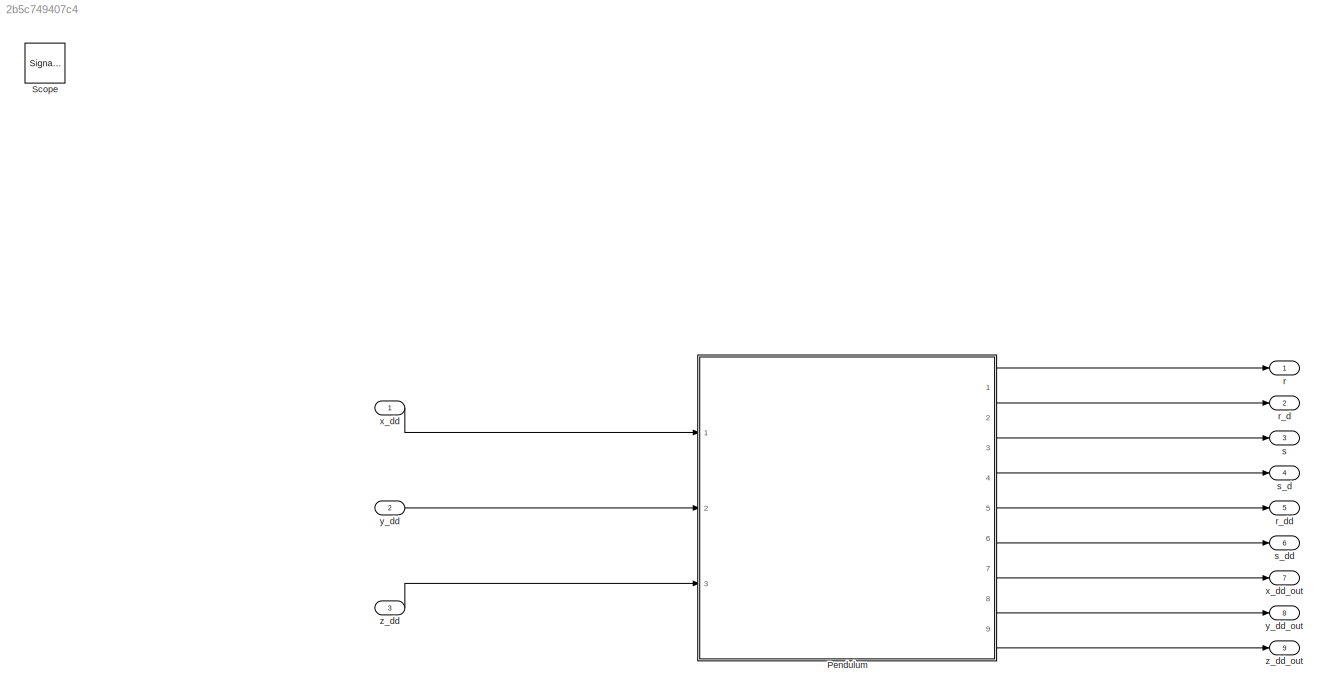
MODEL slx_2b5c749407c4
KIND model
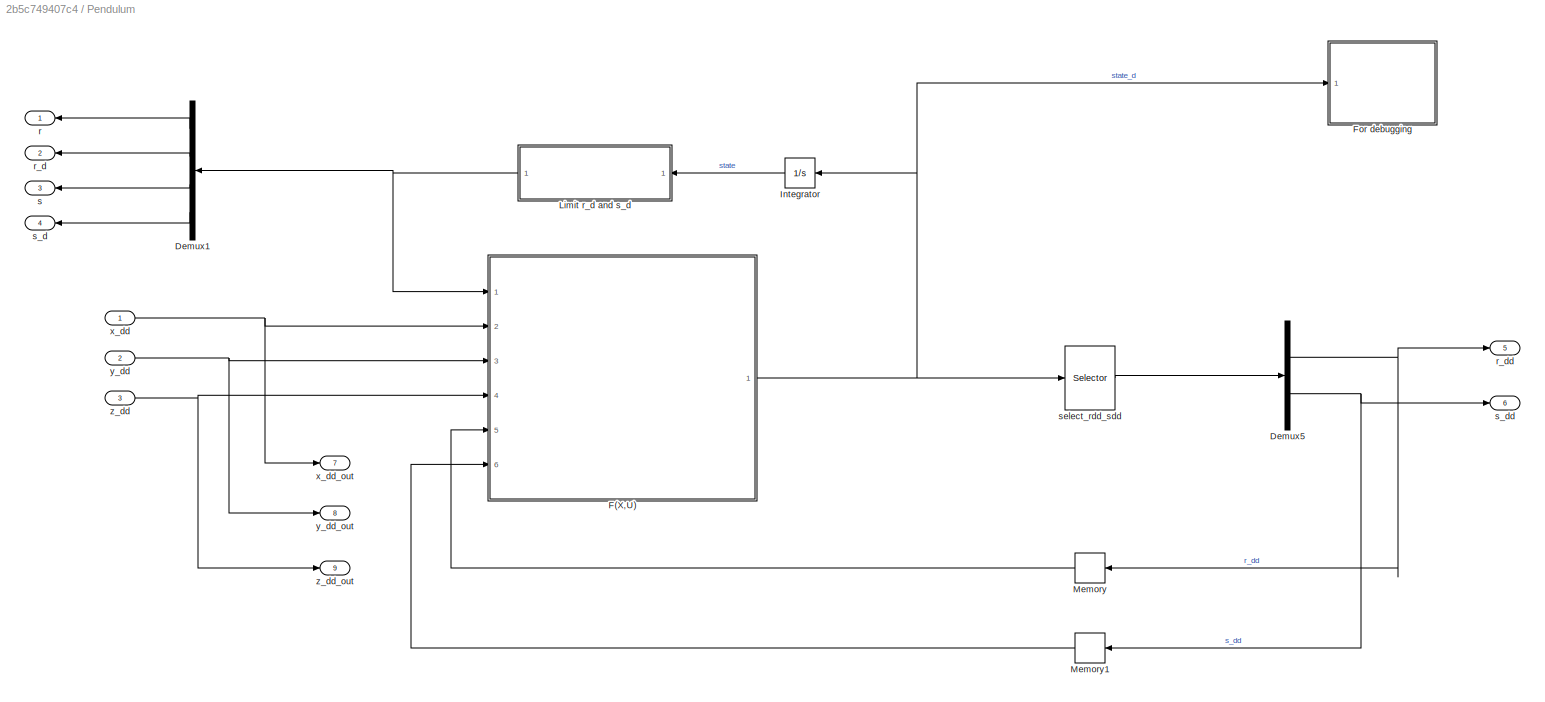
BLOCK [SubSystem] Pendulum
  Ports = [3, 9]
  RequestExecContextInheritance = off
BLOCK [Demux] Pendulum/Demux1
  DisplayOption = bar
  Outputs = [1 1 1 1]
  Ports = [1, 4]
BLOCK [Demux] Pendulum/Demux5
  DisplayOption = bar
  Outputs = [1 1]
  Ports = [1, 2]
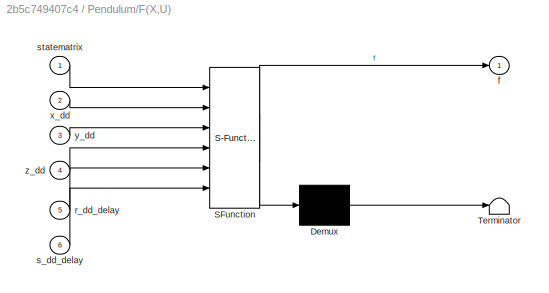
BLOCK [SubSystem] Pendulum/F(X,U)
  ErrorFcn = Stateflow.Translate.translate
  PermitHierarchicalResolution = ExplicitOnly
  Ports = [6, 1]
  RequestExecContextInheritance = off
  SFBlockType = MATLAB Function
  TreatAsAtomicUnit = on
BLOCK [Demux] Pendulum/F(X,U)/ Demux 
  Outputs = 1
  Ports = [1, 1]
BLOCK [S-Function] Pendulum/F(X,U)/ SFunction 
  EnableBusSupport = on
  FunctionName = sf_sfun
  PortCounts = [6 2]
  Ports = [6, 2]
  Tag = Stateflow S-Function pendulum1 2
BLOCK [Terminator] Pendulum/F(X,U)/ Terminator 
BLOCK [Outport] Pendulum/F(X,U)/f
  IconDisplay = Port number
BLOCK [Inport] Pendulum/F(X,U)/r_dd_delay
  IconDisplay = Port number
  Port = 5
BLOCK [Inport] Pendulum/F(X,U)/s_dd_delay
  IconDisplay = Port number
  Port = 6
BLOCK [Inport] Pendulum/F(X,U)/statematrix
  IconDisplay = Port number
BLOCK [Inport] Pendulum/F(X,U)/x_dd
  IconDisplay = Port number
  Port = 2
BLOCK [Inport] Pendulum/F(X,U)/y_dd
  IconDisplay = Port number
  Port = 3
BLOCK [Inport] Pendulum/F(X,U)/z_dd
  IconDisplay = Port number
  Port = 4
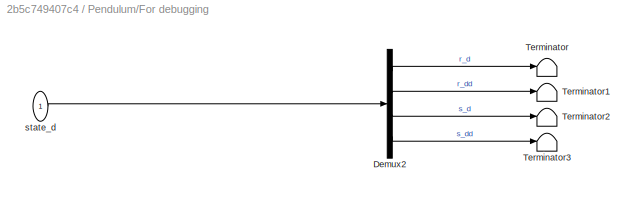
BLOCK [SubSystem] Pendulum/For debugging
  Ports = [1]
  RequestExecContextInheritance = off
BLOCK [Demux] Pendulum/For debugging/Demux2
  DisplayOption = bar
  Outputs = [1 1 1 1]
  Ports = [1, 4]
BLOCK [Terminator] Pendulum/For debugging/Terminator
BLOCK [Terminator] Pendulum/For debugging/Terminator1
BLOCK [Terminator] Pendulum/For debugging/Terminator2
BLOCK [Terminator] Pendulum/For debugging/Terminator3
BLOCK [Inport] Pendulum/For debugging/state_d
  IconDisplay = Port number
BLOCK [Integrator] Pendulum/Integrator
  Ports = [1, 1]
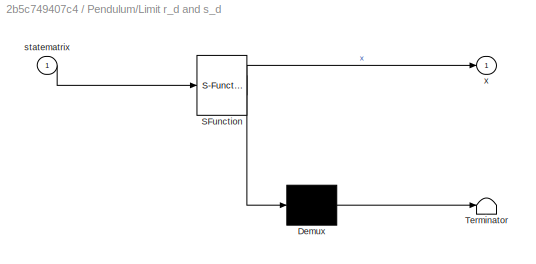
BLOCK [SubSystem] Pendulum/Limit r_d and s_d
  ErrorFcn = Stateflow.Translate.translate
  PermitHierarchicalResolution = ExplicitOnly
  Ports = [1, 1]
  RequestExecContextInheritance = off
  SFBlockType = MATLAB Function
  TreatAsAtomicUnit = on
BLOCK [Demux] Pendulum/Limit r_d and s_d/ Demux 
  Outputs = 1
  Ports = [1, 1]
BLOCK [S-Function] Pendulum/Limit r_d and s_d/ SFunction 
  EnableBusSupport = on
  FunctionName = sf_sfun
  PortCounts = [1 2]
  Ports = [1, 2]
  Tag = Stateflow S-Function pendulum1 1
BLOCK [Terminator] Pendulum/Limit r_d and s_d/ Terminator 
BLOCK [Inport] Pendulum/Limit r_d and s_d/statematrix
  IconDisplay = Port number
BLOCK [Outport] Pendulum/Limit r_d and s_d/x
  IconDisplay = Port number
BLOCK [Memory] Pendulum/Memory
BLOCK [Memory] Pendulum/Memory1
BLOCK [Outport] Pendulum/r
  IconDisplay = Port number
BLOCK [Outport] Pendulum/r_d
  IconDisplay = Port number
  Port = 2
BLOCK [Outport] Pendulum/r_dd
  IconDisplay = Port number
  Port = 5
BLOCK [Outport] Pendulum/s
  IconDisplay = Port number
  Port = 3
BLOCK [Outport] Pendulum/s_d
  IconDisplay = Port number
  Port = 4
BLOCK [Outport] Pendulum/s_dd
  IconDisplay = Port number
  Port = 6
BLOCK [Selector] Pendulum/select_rdd_sdd
  Indices = [2 4]
  InputPortWidth = 4
  Ports = [1, 1]
BLOCK [Inport] Pendulum/x_dd
  IconDisplay = Port number
BLOCK [Outport] Pendulum/x_dd_out
  IconDisplay = Port number
  Port = 7
BLOCK [Inport] Pendulum/y_dd
  IconDisplay = Port number
  Port = 2
BLOCK [Outport] Pendulum/y_dd_out
  IconDisplay = Port number
  Port = 8
BLOCK [Inport] Pendulum/z_dd
  IconDisplay = Port number
  Port = 3
BLOCK [Outport] Pendulum/z_dd_out
  IconDisplay = Port number
  Port = 9
BLOCK [SignalViewerScope] Scope
  IOType = viewer
  LegendLocations = 0.96635     0.93568    0.028125    0.041641
  MaxDataPoints = 7500
  NumInputPorts = 1
  Ports = []
  RefreshTime = 0.035000
  ShowDataMarkers = off
  ShowLegends = on
BLOCK [Outport] r
  IconDisplay = Port number
BLOCK [Outport] r_d
  IconDisplay = Port number
  Port = 2
BLOCK [Outport] r_dd
  IconDisplay = Port number
  Port = 5
BLOCK [Outport] s
  IconDisplay = Port number
  Port = 3
BLOCK [Outport] s_d
  IconDisplay = Port number
  Port = 4
BLOCK [Outport] s_dd
  IconDisplay = Port number
  Port = 6
BLOCK [Inport] x_dd
  IconDisplay = Port number
BLOCK [Outport] x_dd_out
  IconDisplay = Port number
  Port = 7
BLOCK [Inport] y_dd
  IconDisplay = Port number
  Port = 2
BLOCK [Outport] y_dd_out
  IconDisplay = Port number
  Port = 8
BLOCK [Inport] z_dd
  IconDisplay = Port number
  Port = 3
BLOCK [Outport] z_dd_out
  IconDisplay = Port number
  Port = 9
LINE Pendulum/Demux1:1 -> Pendulum/r:1
LINE Pendulum/Demux1:2 -> Pendulum/r_d:1
LINE Pendulum/Demux1:3 -> Pendulum/s:1
LINE Pendulum/Demux1:4 -> Pendulum/s_d:1
NET Pendulum/Demux5:1 -> Pendulum/Memory:1, Pendulum/r_dd:1
NET Pendulum/Demux5:2 -> Pendulum/Memory1:1, Pendulum/s_dd:1
NET Pendulum/F(X,U):1 -> Pendulum/For debugging:1, Pendulum/Integrator:1, Pendulum/select_rdd_sdd:1
LINE Pendulum/For debugging/Demux2:1 -> Pendulum/For debugging/Terminator:1
LINE Pendulum/For debugging/Demux2:2 -> Pendulum/For debugging/Terminator1:1
LINE Pendulum/For debugging/Demux2:3 -> Pendulum/For debugging/Terminator2:1
LINE Pendulum/For debugging/Demux2:4 -> Pendulum/For debugging/Terminator3:1
LINE Pendulum/For debugging/state_d:1 -> Pendulum/For debugging/Demux2:1
LINE Pendulum/Integrator:1 -> Pendulum/Limit r_d and s_d:1
NET Pendulum/Limit r_d and s_d:1 -> Pendulum/Demux1:1, Pendulum/F(X,U):1
LINE Pendulum/Memory1:1 -> Pendulum/F(X,U):6
LINE Pendulum/Memory:1 -> Pendulum/F(X,U):5
LINE Pendulum/select_rdd_sdd:1 -> Pendulum/Demux5:1
NET Pendulum/x_dd:1 -> Pendulum/F(X,U):2, Pendulum/x_dd_out:1
NET Pendulum/y_dd:1 -> Pendulum/F(X,U):3, Pendulum/y_dd_out:1
NET Pendulum/z_dd:1 -> Pendulum/F(X,U):4, Pendulum/z_dd_out:1
LINE Pendulum:1 -> r:1
LINE Pendulum:2 -> r_d:1
LINE Pendulum:3 -> s:1
LINE Pendulum:4 -> s_d:1
LINE Pendulum:5 -> r_dd:1
LINE Pendulum:6 -> s_dd:1
LINE Pendulum:7 -> x_dd_out:1
LINE Pendulum:8 -> y_dd_out:1
LINE Pendulum:9 -> z_dd_out:1
LINE x_dd:1 -> Pendulum:1
LINE y_dd:1 -> Pendulum:2
LINE z_dd:1 -> Pendulum:3
note: NET lines group one-source signal fan-out (src -> all destinations, sorted); 1:1 wires keep LINE
